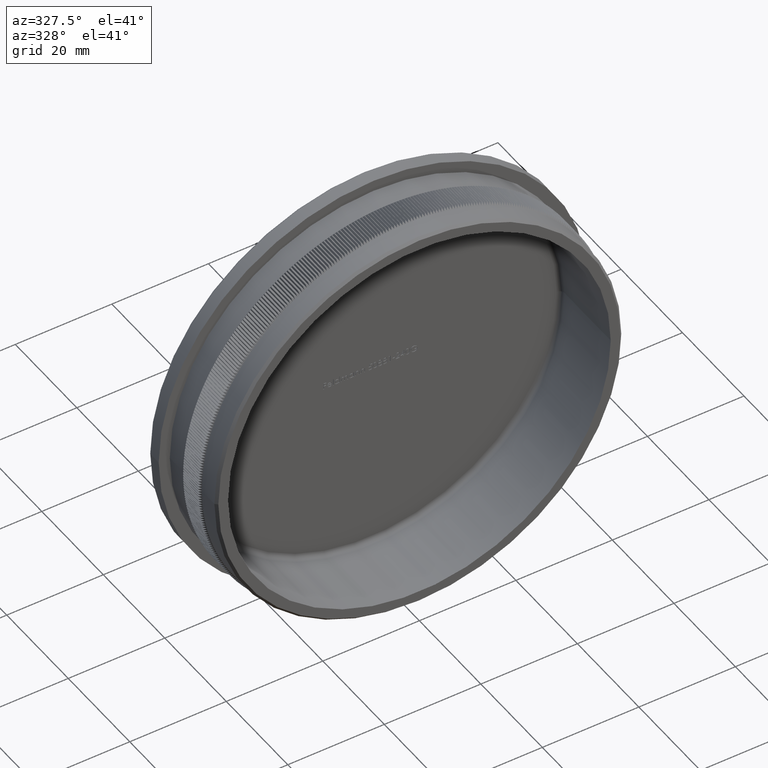
[diagram: clean part render]
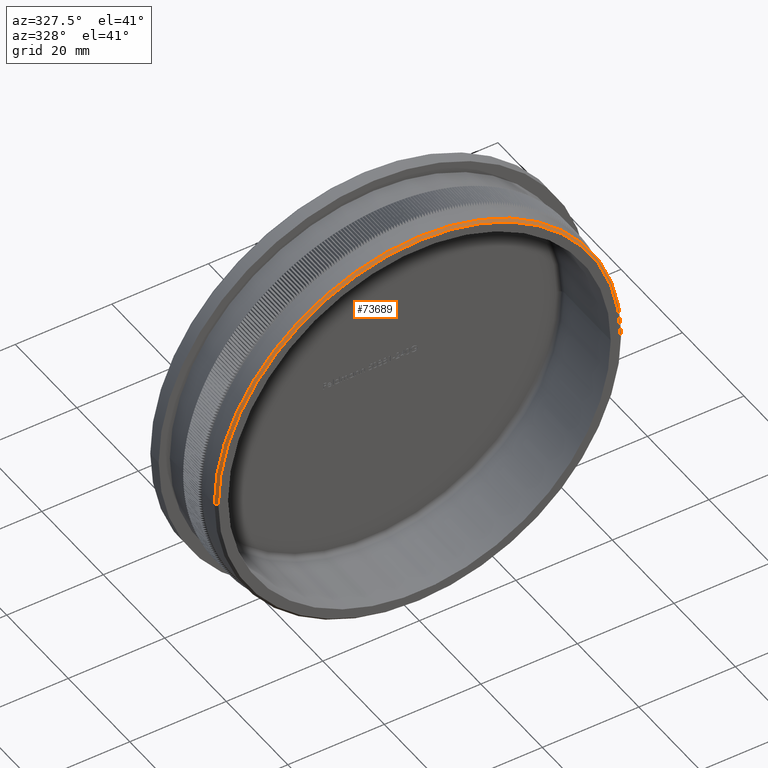
[diagram: same view with one face highlighted and labeled with its STEP entity id]
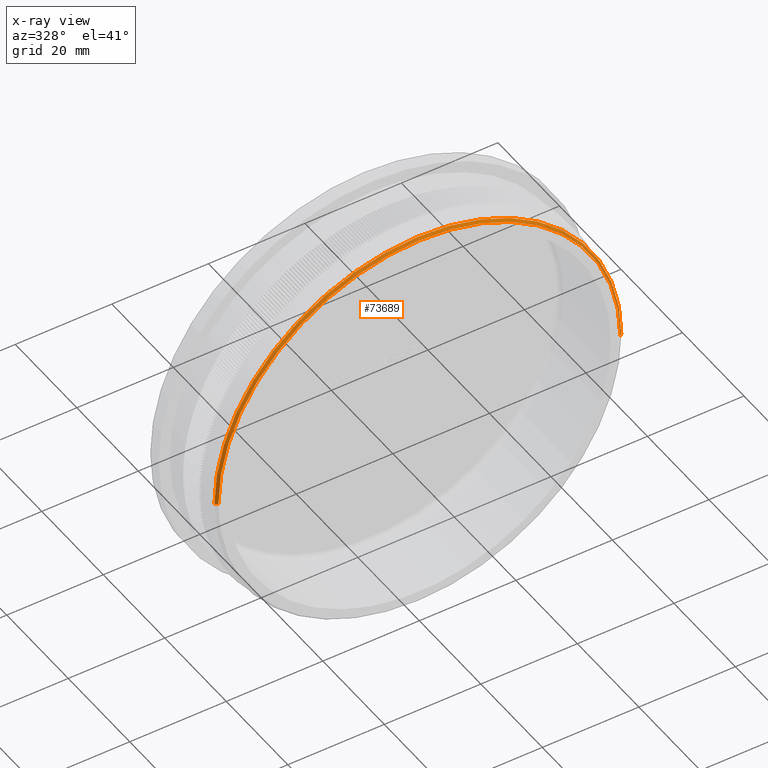
[diagram: x-ray of the same camera — body ghosted, the highlighted face saturated]
A machine part, auxiliary view. The second image highlights one B-rep face of the part: STEP entity #73689.
The next image is the same camera in x-ray: the body ghosted, the highlighted face saturated — about 0% of this face is hidden behind the body in this view.
In plain terms, the highlighted conical surface has half-angle 45 deg.
Its self-contained STEP definition (entity closure, byte-faithful):
#3303 = DIRECTION ( 'NONE',  ( -1.000000000000000000, 3.245114972974589600E-015, 0.0000000000000000000 ) ) ;
#4831 = CONICAL_SURFACE ( 'NONE', #42049, 41.65000000000004800, 0.7853981633974466100 ) ;
#6027 = ORIENTED_EDGE ( 'NONE', *, *, #46990, .F. ) ;
#6781 = DIRECTION ( 'NONE',  ( 1.000000000000000000, -3.245114972974590400E-015, 0.0000000000000000000 ) ) ;
#8210 = VECTOR ( 'NONE', #51091, 1000.000000000000000 ) ;
#10958 = EDGE_CURVE ( 'NONE', #31651, #31258, #38162, .T. ) ;
#11388 = FACE_OUTER_BOUND ( 'NONE', #32881, .T. ) ;
#11855 = DIRECTION ( 'NONE',  ( 1.000000000000000000, -3.246175899588861300E-015, 0.0000000000000000000 ) ) ;
#14431 = ORIENTED_EDGE ( 'NONE', *, *, #51234, .T. ) ;
#14982 = AXIS2_PLACEMENT_3D ( 'NONE', #23957, #71755, #11855 ) ;
#19343 = DIRECTION ( 'NONE',  ( -3.245114972974590400E-015, -1.000000000000000000, -0.0000000000000000000 ) ) ;
#20183 = LINE ( 'NONE', #73586, #45591 ) ;
#21245 = ORIENTED_EDGE ( 'NONE', *, *, #10958, .F. ) ;
#23957 = CARTESIAN_POINT ( 'NONE',  ( -5.029928208110568100E-014, 0.5000000000001374500, 0.0000000000000000000 ) ) ;
#25297 = AXIS2_PLACEMENT_3D ( 'NONE', #66602, #19343, #6781 ) ;
#26064 = LINE ( 'NONE', #45072, #8210 ) ;
#27101 = ORIENTED_EDGE ( 'NONE', *, *, #49049, .T. ) ;
#31258 = VERTEX_POINT ( 'NONE', #51050 ) ;
#31651 = VERTEX_POINT ( 'NONE', #68234 ) ;
#32881 = EDGE_LOOP ( 'NONE', ( #21245, #27101, #14431, #6027 ) ) ;
#33296 = DIRECTION ( 'NONE',  ( 3.245114972974590400E-015, 1.000000000000000000, 0.0000000000000000000 ) ) ;
#33538 = CARTESIAN_POINT ( 'NONE',  ( -5.192183956759298600E-014, 1.353084311261909500E-013, 0.0000000000000000000 ) ) ;
#38162 = CIRCLE ( 'NONE', #25297, 41.65000000000004800 ) ;
#42049 = AXIS2_PLACEMENT_3D ( 'NONE', #33538, #33296, #3303 ) ;
#45072 = CARTESIAN_POINT ( 'NONE',  ( -41.65000000000009800, 2.704674697505828000E-013, 0.0000000000000000000 ) ) ;
#45591 = VECTOR ( 'NONE', #73329, 1000.000000000000000 ) ;
#46990 = EDGE_CURVE ( 'NONE', #31258, #75135, #26064, .T. ) ;
#49049 = EDGE_CURVE ( 'NONE', #31651, #59465, #20183, .T. ) ;
#51050 = CARTESIAN_POINT ( 'NONE',  ( -41.65000000000009800, 2.704674697505828000E-013, 0.0000000000000000000 ) ) ;
#51091 = DIRECTION ( 'NONE',  ( -0.7071067811865440200, 0.7071067811865511300, 0.0000000000000000000 ) ) ;
#51234 = EDGE_CURVE ( 'NONE', #59465, #75135, #74495, .T. ) ;
#55257 = CARTESIAN_POINT ( 'NONE',  ( -42.15000000000009100, 0.5000000000002743400, 5.161886258406100100E-015 ) ) ;
#59465 = VERTEX_POINT ( 'NONE', #64591 ) ;
#64591 = CARTESIAN_POINT ( 'NONE',  ( 42.14999999999999900, 0.5000000000000006700, 0.0000000000000000000 ) ) ;
#66602 = CARTESIAN_POINT ( 'NONE',  ( -5.192183956759298600E-014, 1.353084311261909500E-013, 0.0000000000000000000 ) ) ;
#68234 = CARTESIAN_POINT ( 'NONE',  ( 41.64999999999999900, 1.493925017990943200E-016, 5.131270088427416300E-015 ) ) ;
#71755 = DIRECTION ( 'NONE',  ( -3.245114972974590400E-015, -1.000000000000000000, -0.0000000000000000000 ) ) ;
#73329 = DIRECTION ( 'NONE',  ( 0.7071067811865486800, 0.7071067811865464600, 8.659560562354918100E-017 ) ) ;
#73586 = CARTESIAN_POINT ( 'NONE',  ( 41.64999999999999900, 1.493925017990943200E-016, 5.100653918448732500E-015 ) ) ;
#73689 = ADVANCED_FACE ( 'NONE', ( #11388 ), #4831, .T. ) ;
#74495 = CIRCLE ( 'NONE', #14982, 42.15000000000004800 ) ;
#75135 = VERTEX_POINT ( 'NONE', #55257 ) ;